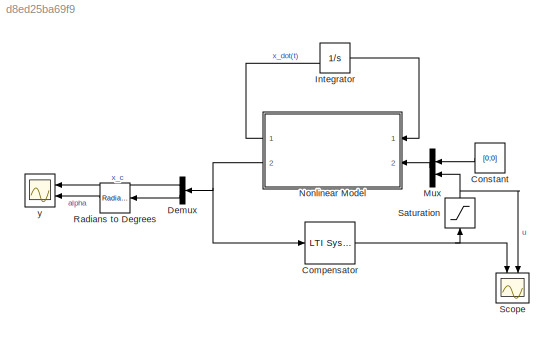
MODEL slx_d8ed25ba69f9
KIND model
CONFIG AbsTol = auto
CONFIG EnableMultiTasking = on
CONFIG FixedStep = 0.002
CONFIG MaxStep = auto
CONFIG MinStep = auto
CONFIG RelTol = 1e-3
CONFIG SampleTimeConstraint = Unconstrained
CONFIG SolverName = VariableStepAuto
CONFIG StartTime = 0.0
CONFIG StopTime = 10
BLOCK [Reference] Compensator  REF=cstblocks/LTI System
  NameLocation = top
  Ports = [1, 1]
  SourceBlock = cstblocks/LTI System
  SourceProductBaseCode = CT
  SourceType = LTI Block
BLOCK [Constant] Constant
  Value = [0;0]
BLOCK [Demux] Demux
  Outputs = 2
  Ports = [1, 2]
BLOCK [Integrator] Integrator
  InitialCondition = [0;4 * pi / 180;0;0]
  Ports = [1, 1]
BLOCK [Mux] Mux
  DisplayOption = bar
  Inputs = 2
  Ports = [2, 1]
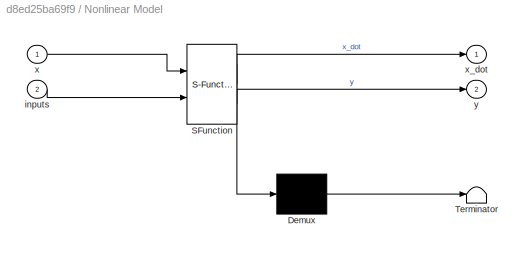
BLOCK [SubSystem] Nonlinear Model
  ErrorFcn = Stateflow.Translate.translate
  PermitHierarchicalResolution = ExplicitOnly
  Ports = [2, 2]
  RequestExecContextInheritance = off
  SFBlockType = MATLAB Function
  TreatAsAtomicUnit = on
BLOCK [Demux] Nonlinear Model/ Demux 
  Outputs = 1
  Ports = [1, 1]
BLOCK [S-Function] Nonlinear Model/ SFunction 
  EnableBusSupport = on
  FunctionName = sf_sfun
  PortCounts = [2 3]
  Ports = [2, 3]
  SFcnIsStateOwnerBlock = off
  SFunctionDeploymentMode = off
  Tag = Stateflow S-Function 1
BLOCK [Terminator] Nonlinear Model/ Terminator 
BLOCK [Inport] Nonlinear Model/inputs
  Port = 2
BLOCK [Inport] Nonlinear Model/x
BLOCK [Outport] Nonlinear Model/x_dot
  VectorParamsAs1DForOutWhenUnconnected = off
BLOCK [Outport] Nonlinear Model/y
  Port = 2
  VectorParamsAs1DForOutWhenUnconnected = off
BLOCK [Reference] Radians to Degrees  REF=simulink_extras/Transformations/Radians
to Degrees
  Ports = [1, 1]
  SourceBlock = simulink_extras/Transformations/Radians\nto Degrees
  SourceProductBaseCode = SL
  SourceType = RadiansToDegrees
BLOCK [Saturate] Saturation
  LowerLimit = -5
  NameLocation = right
  OutDataTypeStr = double
  UpperLimit = 5
BLOCK [Scope] Scope
  Floating = off
  NameLocation = left
  NumInputPorts = 2
  Ports = [2]
  ScopeSpecificationString = Simulink.scopes.TimeScopeBlockCfg('CurrentConfiguration', extmgr.ConfigurationSet(extmgr.Configuration('Core','General UI',true),extmgr.Configuration('Core','Source UI',true),extmgr.Configuration('Sources','WiredSimulink',true,'DataLoggingVariableName','ScopeData2'),extmgr.Configuration('Visuals','Time Domain',true,'SerializedDisplays',{struct('MinYLimReal','-9.34143','MaxYLimReal','5.13282','YLab...<+1421ch>
BLOCK [Scope] y
  Floating = off
  NumInputPorts = 2
  Ports = [2]
  ScopeSpecificationString = Simulink.scopes.TimeScopeBlockCfg('CurrentConfiguration', extmgr.ConfigurationSet(extmgr.Configuration('Core','General UI',true),extmgr.Configuration('Core','Source UI',true),extmgr.Configuration('Sources','WiredSimulink',true,'DataLoggingVariableName','ScopeData1'),extmgr.Configuration('Visuals','Time Domain',true,'SerializedDisplays',{struct('MinYLimReal','-0.13657','MaxYLimReal','0.06278','YLab...<+2076ch>
NET Compensator:1 -> Saturation:1, Scope:1
LINE Constant:1 -> Mux:1
LINE Demux:1 -> y:1
LINE Demux:2 -> Radians to Degrees:1
LINE Integrator:1 -> Nonlinear Model:1
LINE Mux:1 -> Nonlinear Model:2
LINE Nonlinear Model:1 -> Integrator:1
NET Nonlinear Model:2 -> Compensator:1, Demux:1
LINE Radians to Degrees:1 -> y:2
NET Saturation:1 -> Mux:2, Scope:2
note: NET lines group one-source signal fan-out (src -> all destinations, sorted); 1:1 wires keep LINE
CHART Nonlinear Model states=1 transitions=1
  STATE_LABEL 'eML_blk_kernel()'
  STATE_LABEL 'SCRIPT:\nfunction [x_dot, y] = NonlinearModel(x, inputs)\n    x_c = x(1);\n    alpha = x(2);\n    x_c_dot = x(3);\n    alpha_dot = x(4);\n    \n    F_d = inputs(1);\n    Tau_d = inputs(2);\n    V_m = inputs(3);\n    \n    x_dot = [\n        x_c_dot;\n        alpha_dot;\n        (0.035320935178499876438522107813446*V_m)/(0.005767794916*sin(alpha)^2 + 0.030917930772731869127468717906027) - (0.0329573692*F_d)/(0.0...<+1453ch>'
CHART  states=0 transitions=0
